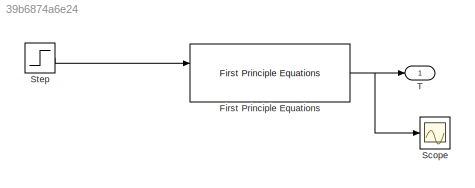
MODEL slx_39b6874a6e24
KIND model
BLOCK [Reference] First Principle Equations  REF=SLDCMotors_Lib/First Principle Equations
  Kemf = Dm1
  Km = T1
  L = H1
  Ports = [2, 1]
  R = R1
  SourceBlock = SLDCMotors_Lib/First Principle Equations
  SourceType = DC Motor - First Principles
BLOCK [Scope] Scope
  Floating = off
  NumInputPorts = 1
  Ports = [1]
  ShowLegends = off
  ZoomMode = xonly
BLOCK [Step] Step
  After = 0.7
  SampleTime = 0
  Time = 0
BLOCK [Outport] T
  IconDisplay = Port number
NET First Principle Equations:1 -> Scope:1, T:1
LINE Step:1 -> First Principle Equations:1
note: NET lines group one-source signal fan-out (src -> all destinations, sorted); 1:1 wires keep LINE
